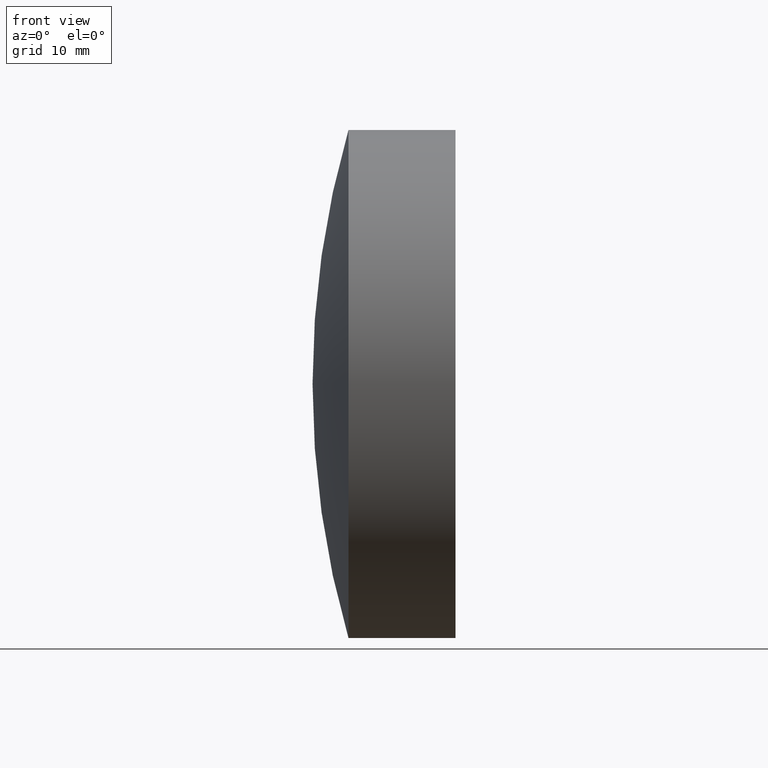
[diagram: clean part render]
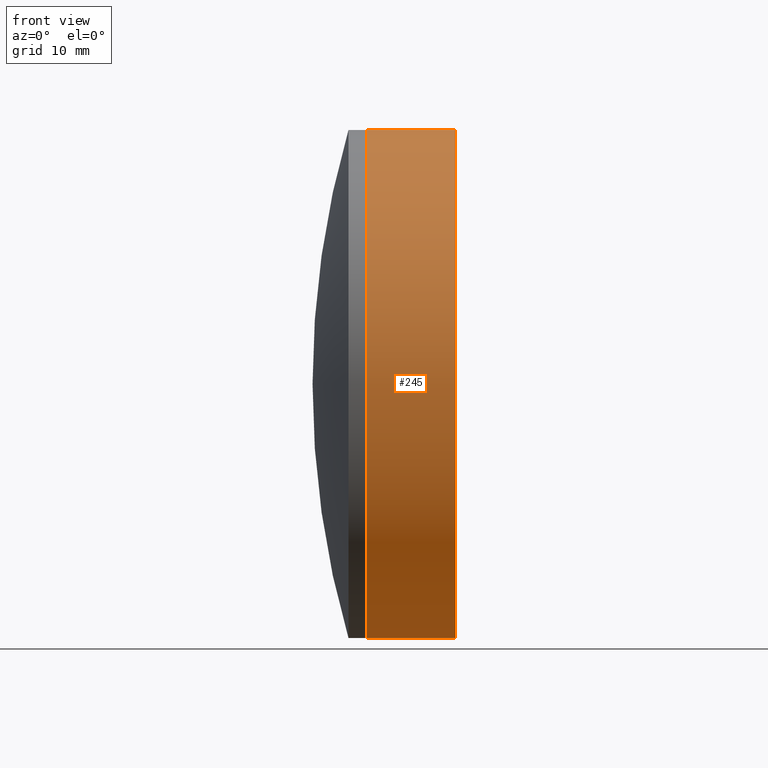
[diagram: same view with one face highlighted and labeled with its STEP entity id]
A machine part, front view. The second image highlights one B-rep face of the part: STEP entity #245.
In plain terms, the highlighted cylindrical surface (partial cylindrical patch) has radius 25.4 mm, axis along (-1, -0, -0).
Its self-contained STEP definition (entity closure, byte-faithful):
#24 = ORIENTED_EDGE ( 'NONE', *, *, #301, .F. ) ;
#25 = CARTESIAN_POINT ( 'NONE',  ( -0.5519199926577972300, 0.0000000000000000000, 25.39999999999999900 ) ) ;
#27 = CARTESIAN_POINT ( 'NONE',  ( -0.5519199926577972300, 0.0000000000000000000, 0.0000000000000000000 ) ) ;
#29 = AXIS2_PLACEMENT_3D ( 'NONE', #89, #262, #63 ) ;
#50 = VERTEX_POINT ( 'NONE', #336 ) ;
#63 = DIRECTION ( 'NONE',  ( 0.0000000000000000000, 0.0000000000000000000, 1.000000000000000000 ) ) ;
#82 = DIRECTION ( 'NONE',  ( -1.000000000000000000, -0.0000000000000000000, -0.0000000000000000000 ) ) ;
#89 = CARTESIAN_POINT ( 'NONE',  ( 192.7471612009789500, 0.0000000000000000000, 0.0000000000000000000 ) ) ;
#94 = VECTOR ( 'NONE', #144, 1000.000000000000000 ) ;
#98 = VERTEX_POINT ( 'NONE', #264 ) ;
#102 = EDGE_CURVE ( 'NONE', #152, #50, #200, .T. ) ;
#110 = CARTESIAN_POINT ( 'NONE',  ( -0.5519199926577972300, 3.110602869834276900E-015, -25.39999999999999900 ) ) ;
#113 = VERTEX_POINT ( 'NONE', #235 ) ;
#119 = DIRECTION ( 'NONE',  ( 0.0000000000000000000, 0.0000000000000000000, 1.000000000000000000 ) ) ;
#139 = EDGE_CURVE ( 'NONE', #113, #98, #324, .T. ) ;
#144 = DIRECTION ( 'NONE',  ( -1.000000000000000000, -0.0000000000000000000, -0.0000000000000000000 ) ) ;
#150 = CARTESIAN_POINT ( 'NONE',  ( 183.8303689728458900, 0.0000000000000000000, -25.40000000000000600 ) ) ;
#151 = CARTESIAN_POINT ( 'NONE',  ( 183.8303689728458900, 0.0000000000000000000, 0.0000000000000000000 ) ) ;
#152 = VERTEX_POINT ( 'NONE', #150 ) ;
#160 = ORIENTED_EDGE ( 'NONE', *, *, #332, .T. ) ;
#200 = CIRCLE ( 'NONE', #345, 25.39999999999999900 ) ;
#202 = DIRECTION ( 'NONE',  ( 0.0000000000000000000, 0.0000000000000000000, 1.000000000000000000 ) ) ;
#217 = FACE_OUTER_BOUND ( 'NONE', #340, .T. ) ;
#221 = CYLINDRICAL_SURFACE ( 'NONE', #306, 25.39999999999999900 ) ;
#235 = CARTESIAN_POINT ( 'NONE',  ( 192.7471612009789500, 0.0000000000000000000, -25.39999999999998400 ) ) ;
#239 = LINE ( 'NONE', #110, #94 ) ;
#245 = ADVANCED_FACE ( 'NONE', ( #217 ), #221, .T. ) ;
#247 = LINE ( 'NONE', #25, #311 ) ;
#257 = DIRECTION ( 'NONE',  ( -1.000000000000000000, -0.0000000000000000000, -0.0000000000000000000 ) ) ;
#262 = DIRECTION ( 'NONE',  ( -1.000000000000000000, -0.0000000000000000000, -0.0000000000000000000 ) ) ;
#264 = CARTESIAN_POINT ( 'NONE',  ( 192.7471612009789500, -3.110602869834275700E-015, 25.39999999999998400 ) ) ;
#267 = ORIENTED_EDGE ( 'NONE', *, *, #102, .F. ) ;
#270 = ORIENTED_EDGE ( 'NONE', *, *, #139, .T. ) ;
#301 = EDGE_CURVE ( 'NONE', #113, #152, #239, .T. ) ;
#306 = AXIS2_PLACEMENT_3D ( 'NONE', #27, #257, #202 ) ;
#308 = DIRECTION ( 'NONE',  ( -1.000000000000000000, -0.0000000000000000000, -0.0000000000000000000 ) ) ;
#311 = VECTOR ( 'NONE', #82, 1000.000000000000000 ) ;
#324 = CIRCLE ( 'NONE', #29, 25.39999999999999900 ) ;
#332 = EDGE_CURVE ( 'NONE', #98, #50, #247, .T. ) ;
#336 = CARTESIAN_POINT ( 'NONE',  ( 183.8303689728458900, -3.110602869834278000E-015, 25.40000000000003400 ) ) ;
#340 = EDGE_LOOP ( 'NONE', ( #24, #270, #160, #267 ) ) ;
#345 = AXIS2_PLACEMENT_3D ( 'NONE', #151, #308, #119 ) ;